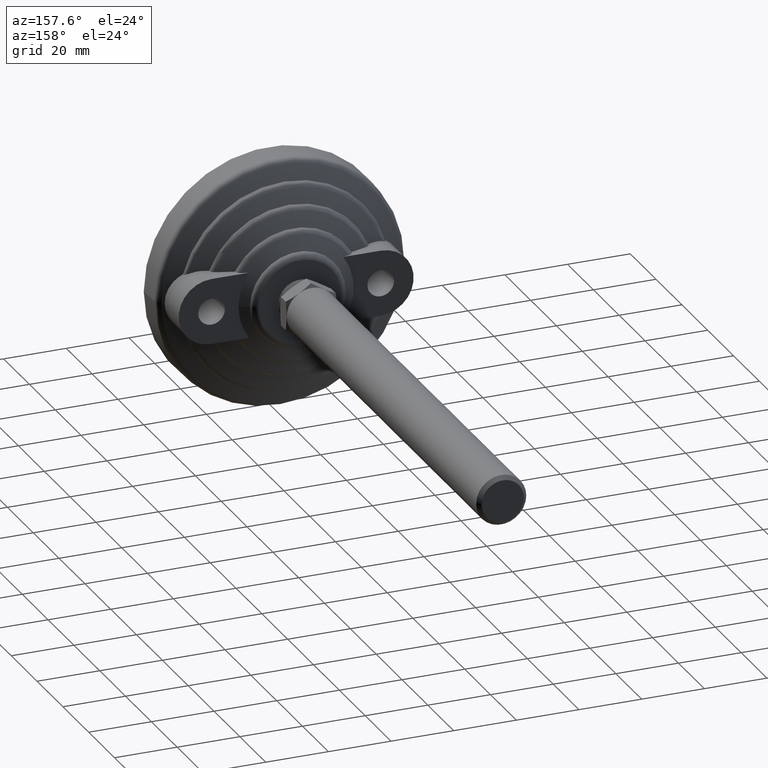
[diagram: clean part render]
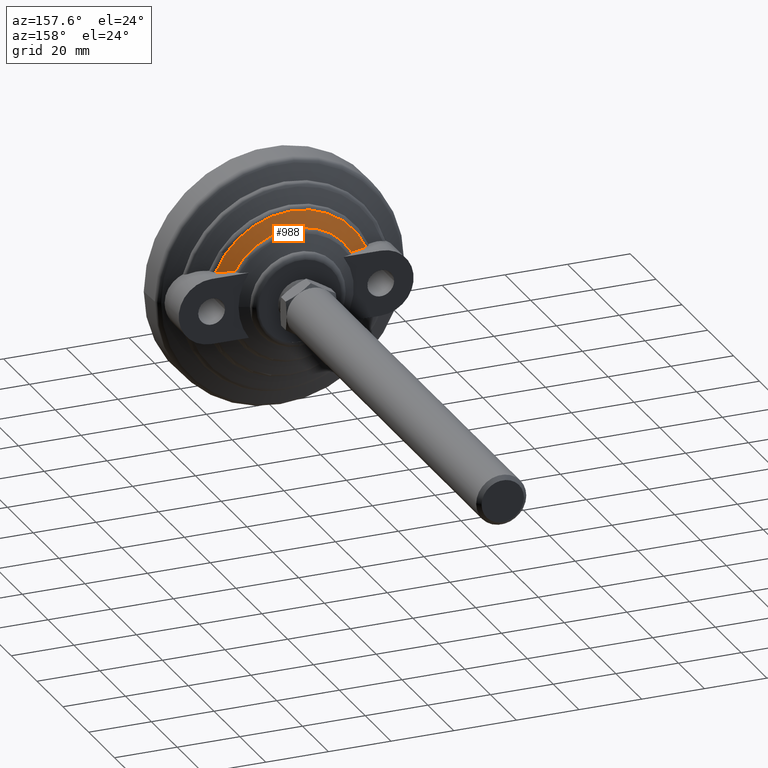
[diagram: same view with one face highlighted and labeled with its STEP entity id]
A machine part, auxiliary view. The second image highlights one B-rep face of the part: STEP entity #988.
In plain terms, the highlighted conical surface has half-angle 69.278 deg.
Its self-contained STEP definition (entity closure, byte-faithful):
#46=CONICAL_SURFACE('',#1136,23.790972958514,1.20912995397196);
#66=(
BOUNDED_CURVE()
B_SPLINE_CURVE(2,(#1671,#1672,#1673),.UNSPECIFIED.,.F.,.F.)
B_SPLINE_CURVE_WITH_KNOTS((3,3),(0.,0.570917621195301),.UNSPECIFIED.)
CURVE()
GEOMETRIC_REPRESENTATION_ITEM()
RATIONAL_B_SPLINE_CURVE((1.,1.00651975650085,1.))
REPRESENTATION_ITEM('')
);
#68=(
BOUNDED_CURVE()
B_SPLINE_CURVE(2,(#1702,#1703,#1704),.UNSPECIFIED.,.F.,.F.)
B_SPLINE_CURVE_WITH_KNOTS((3,3),(0.,0.570917621195301),.UNSPECIFIED.)
CURVE()
GEOMETRIC_REPRESENTATION_ITEM()
RATIONAL_B_SPLINE_CURVE((1.,1.00651975650085,1.))
REPRESENTATION_ITEM('')
);
#171=FACE_OUTER_BOUND('',#232,.T.);
#232=EDGE_LOOP('',(#816,#817,#818,#819));
#359=CIRCLE('',#1135,26.213089996915);
#360=CIRCLE('',#1137,21.368855920113);
#422=VERTEX_POINT('',#1659);
#423=VERTEX_POINT('',#1670);
#426=VERTEX_POINT('',#1690);
#427=VERTEX_POINT('',#1701);
#532=EDGE_CURVE('',#423,#422,#66,.T.);
#536=EDGE_CURVE('',#427,#426,#68,.T.);
#583=EDGE_CURVE('',#422,#427,#359,.T.);
#584=EDGE_CURVE('',#423,#426,#360,.T.);
#816=ORIENTED_EDGE('',*,*,#536,.T.);
#817=ORIENTED_EDGE('',*,*,#584,.F.);
#818=ORIENTED_EDGE('',*,*,#532,.T.);
#819=ORIENTED_EDGE('',*,*,#583,.T.);
#988=ADVANCED_FACE('',(#171),#46,.T.);
#1135=AXIS2_PLACEMENT_3D('',#1878,#1361,#1362);
#1136=AXIS2_PLACEMENT_3D('',#1879,#1363,#1364);
#1137=AXIS2_PLACEMENT_3D('',#1880,#1365,#1366);
#1361=DIRECTION('center_axis',(0.,1.,0.));
#1362=DIRECTION('ref_axis',(-1.,0.,0.));
#1363=DIRECTION('center_axis',(0.,-1.,0.));
#1364=DIRECTION('ref_axis',(-1.,0.,0.));
#1365=DIRECTION('center_axis',(0.,1.,0.));
#1366=DIRECTION('ref_axis',(-1.,0.,0.));
#1659=CARTESIAN_POINT('',(-24.0182448814722,16.855973555576,10.5));
#1670=CARTESIAN_POINT('',(-18.6112332566799,18.688578845057,10.5));
#1671=CARTESIAN_POINT('Ctrl Pts',(-18.6112332566799,18.688578845057,10.5));
#1672=CARTESIAN_POINT('Ctrl Pts',(-21.0394999057595,17.8884976336604,10.5));
#1673=CARTESIAN_POINT('Ctrl Pts',(-24.0182448814722,16.855973555576,10.5));
#1690=CARTESIAN_POINT('',(18.6112332566799,18.688578845057,10.5));
#1701=CARTESIAN_POINT('',(24.0182448814722,16.855973555576,10.5));
#1702=CARTESIAN_POINT('Ctrl Pts',(24.0182448814722,16.855973555576,10.5));
#1703=CARTESIAN_POINT('Ctrl Pts',(21.0394999057595,17.8884976336604,10.5));
#1704=CARTESIAN_POINT('Ctrl Pts',(18.6112332566799,18.688578845057,10.5));
#1878=CARTESIAN_POINT('Origin',(0.,16.855973555576,0.));
#1879=CARTESIAN_POINT('Origin',(0.,17.7722762003165,0.));
#1880=CARTESIAN_POINT('Origin',(0.,18.688578845057,0.));